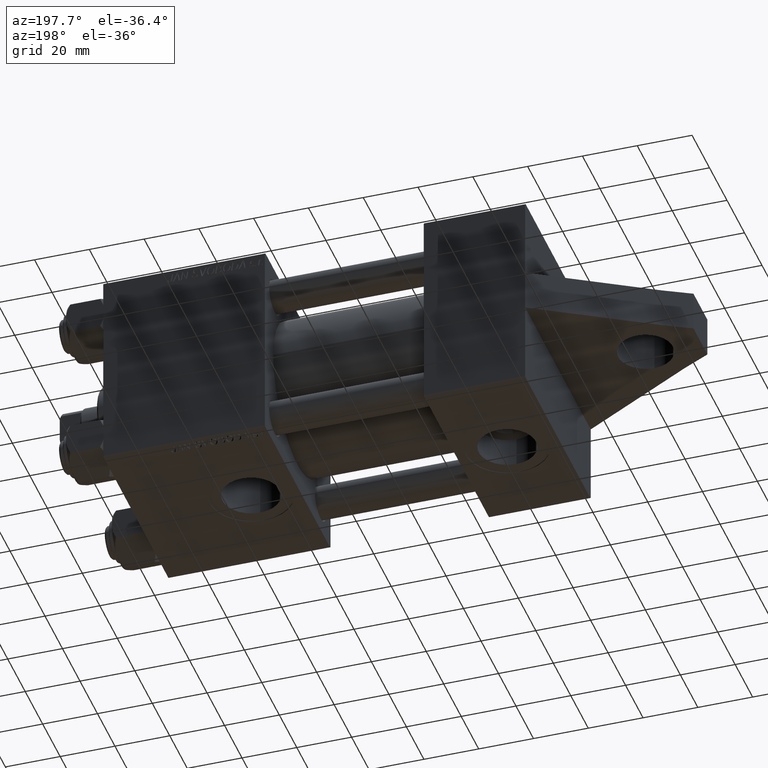
[diagram: clean part render]
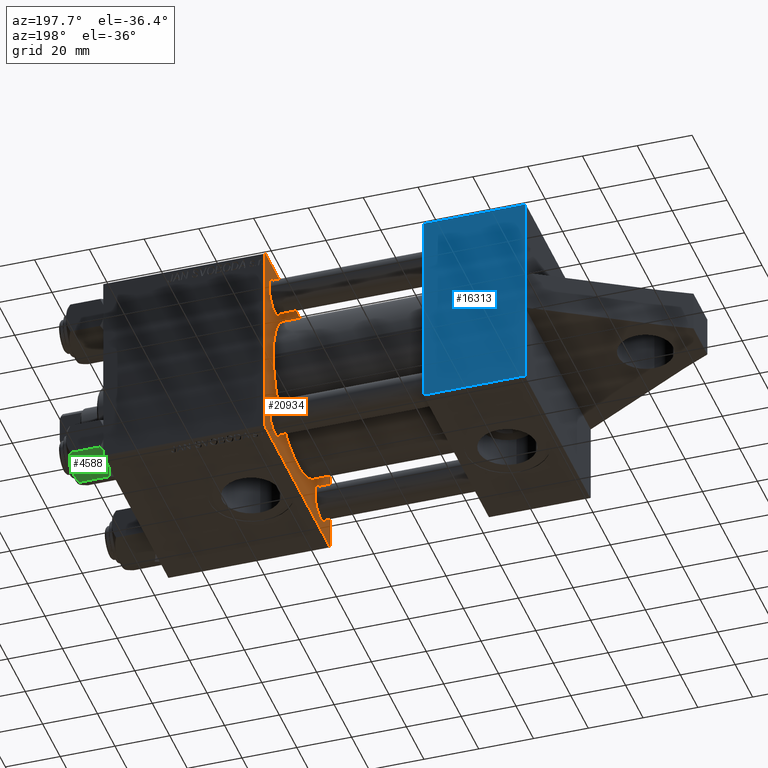
[diagram: same view with three faces highlighted in distinct colors, each labeled with its STEP entity id]
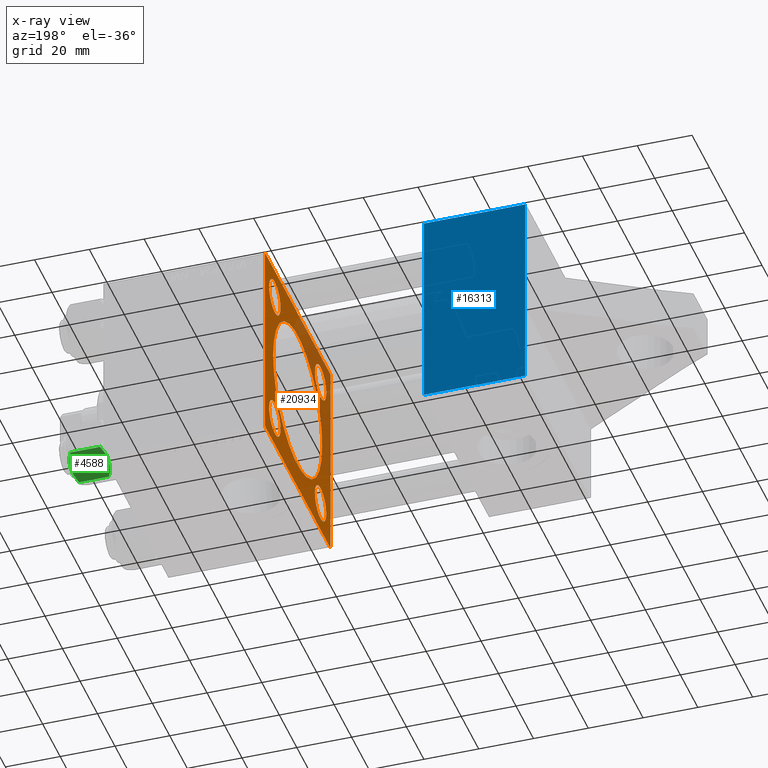
[diagram: x-ray of the same camera — body ghosted, the three highlighted faces saturated]
A machine part, auxiliary view with three faces highlighted in distinct colors.
The next image is the same camera in x-ray (body ghosted, the three faces saturated) — at least one of them is partly hidden behind the body in this view.
Their STEP definitions:

[orange] entity #20934 — the highlighted planar face has unit normal (-1, -0, 0).
#400 = EDGE_CURVE ( 'NONE', #4245, #25515, #40300, .T. ) ;
#948 = EDGE_LOOP ( 'NONE', ( #36280, #23678 ) ) ;
#1155 = ORIENTED_EDGE ( 'NONE', *, *, #33909, .T. ) ;
#1826 = DIRECTION ( 'NONE',  ( 0.000000000000000000, 0.000000000000000000, 1.000000000000000000 ) ) ;
#1888 = VERTEX_POINT ( 'NONE', #8541 ) ;
#1933 = EDGE_LOOP ( 'NONE', ( #24096, #18286 ) ) ;
#2420 = VERTEX_POINT ( 'NONE', #35903 ) ;
#2515 = VERTEX_POINT ( 'NONE', #11929 ) ;
#2652 = DIRECTION ( 'NONE',  ( 1.000000000000000000, 0.000000000000000000, 0.000000000000000000 ) ) ;
#2900 = CARTESIAN_POINT ( 'NONE',  ( 95.00000000000000000, -26.14999999999999147, 26.14999999999999503 ) ) ;
#3257 = AXIS2_PLACEMENT_3D ( 'NONE', #26500, #15330, #40005 ) ;
#3371 = CARTESIAN_POINT ( 'NONE',  ( 95.00000000000000000, 37.25000000000000000, 37.25000000000000000 ) ) ;
#4050 = DIRECTION ( 'NONE',  ( 1.000000000000000000, 0.000000000000000000, 0.000000000000000000 ) ) ;
#4245 = VERTEX_POINT ( 'NONE', #4726 ) ;
#4341 = CARTESIAN_POINT ( 'NONE',  ( 95.00000000000000000, 26.14999999999999858, 26.15000000000000213 ) ) ;
#4494 = ORIENTED_EDGE ( 'NONE', *, *, #36065, .T. ) ;
#4726 = CARTESIAN_POINT ( 'NONE',  ( 95.00000000000000000, -37.50000000000000000, 36.99999999999995026 ) ) ;
#4983 = DIRECTION ( 'NONE',  ( 0.000000000000000000, 0.000000000000000000, -1.000000000000000000 ) ) ;
#5441 = EDGE_CURVE ( 'NONE', #24966, #2515, #29822, .T. ) ;
#5603 = CARTESIAN_POINT ( 'NONE',  ( 95.00000000000000000, -37.50000000000000000, 37.49999999999997868 ) ) ;
#5610 = CARTESIAN_POINT ( 'NONE',  ( 95.00000000000000000, -37.24999999999997158, 37.24999999999997158 ) ) ;
#6054 = PLANE ( 'NONE',  #21685 ) ;
#6387 = VERTEX_POINT ( 'NONE', #40479 ) ;
#6396 = AXIS2_PLACEMENT_3D ( 'NONE', #27171, #41606, #9712 ) ;
#6397 = VERTEX_POINT ( 'NONE', #26061 ) ;
#6784 = AXIS2_PLACEMENT_3D ( 'NONE', #34537, #2652, #16842 ) ;
#7101 = CIRCLE ( 'NONE', #17495, 6.500000000000002665 ) ;
#7141 = VECTOR ( 'NONE', #4983, 1000.000000000000000 ) ;
#7307 = VERTEX_POINT ( 'NONE', #22054 ) ;
#7786 = VECTOR ( 'NONE', #38846, 1000.000000000000000 ) ;
#8084 = DIRECTION ( 'NONE',  ( 0.000000000000000000, 0.000000000000000000, 1.000000000000000000 ) ) ;
#8541 = CARTESIAN_POINT ( 'NONE',  ( 95.00000000000000000, -26.15000000000000213, -19.64999999999999503 ) ) ;
#9018 = CARTESIAN_POINT ( 'NONE',  ( 95.00000000000000000, -26.14999999999999147, 19.64999999999999147 ) ) ;
#9546 = FACE_BOUND ( 'NONE', #9589, .T. ) ;
#9589 = EDGE_LOOP ( 'NONE', ( #37667, #32321 ) ) ;
#9712 = DIRECTION ( 'NONE',  ( 0.000000000000000000, 0.000000000000000000, 1.000000000000000000 ) ) ;
#11016 = EDGE_LOOP ( 'NONE', ( #43641, #4494 ) ) ;
#11193 = ORIENTED_EDGE ( 'NONE', *, *, #37065, .F. ) ;
#11349 = VERTEX_POINT ( 'NONE', #9018 ) ;
#11568 = DIRECTION ( 'NONE',  ( 0.000000000000000000, 0.000000000000000000, 1.000000000000000000 ) ) ;
#11929 = CARTESIAN_POINT ( 'NONE',  ( 95.00000000000000000, -36.99999999999998579, -37.50000000000000000 ) ) ;
#12071 = DIRECTION ( 'NONE',  ( 0.000000000000000000, 0.000000000000000000, 1.000000000000000000 ) ) ;
#12391 = VECTOR ( 'NONE', #23072, 1000.000000000000114 ) ;
#13492 = AXIS2_PLACEMENT_3D ( 'NONE', #41611, #24601, #27848 ) ;
#13834 = ORIENTED_EDGE ( 'NONE', *, *, #400, .T. ) ;
#13874 = ORIENTED_EDGE ( 'NONE', *, *, #40014, .T. ) ;
#14062 = DIRECTION ( 'NONE',  ( 1.000000000000000000, 0.000000000000000000, -0.000000000000000000 ) ) ;
#14150 = CARTESIAN_POINT ( 'NONE',  ( 95.00000000000000000, -37.24999999999896261, -37.25000000000103029 ) ) ;
#14154 = CARTESIAN_POINT ( 'NONE',  ( 95.00000000000000000, 26.14999999999999858, -32.65000000000001279 ) ) ;
#14254 = LINE ( 'NONE', #14480, #33991 ) ;
#14381 = LINE ( 'NONE', #14150, #34240 ) ;
#14422 = EDGE_CURVE ( 'NONE', #2515, #2420, #14381, .T. ) ;
#14480 = CARTESIAN_POINT ( 'NONE',  ( 95.00000000000000000, 37.25000000000026290, -37.24999999999974420 ) ) ;
#14527 = DIRECTION ( 'NONE',  ( 0.000000000000000000, 0.000000000000000000, 1.000000000000000000 ) ) ;
#14643 = CIRCLE ( 'NONE', #29501, 6.500000000000008882 ) ;
#15254 = VECTOR ( 'NONE', #28747, 1000.000000000000114 ) ;
#15330 = DIRECTION ( 'NONE',  ( 1.000000000000000000, 0.000000000000000000, -0.000000000000000000 ) ) ;
#16183 = CARTESIAN_POINT ( 'NONE',  ( 95.00000000000000000, 26.14999999999999858, 32.65000000000001279 ) ) ;
#16228 = EDGE_CURVE ( 'NONE', #25371, #22889, #30588, .T. ) ;
#16842 = DIRECTION ( 'NONE',  ( 0.000000000000000000, 0.000000000000000000, -1.000000000000000000 ) ) ;
#16985 = EDGE_LOOP ( 'NONE', ( #1155, #40718 ) ) ;
#17241 = EDGE_CURVE ( 'NONE', #6397, #22692, #40929, .T. ) ;
#17422 = LINE ( 'NONE', #42805, #7786 ) ;
#17495 = AXIS2_PLACEMENT_3D ( 'NONE', #2900, #14062, #14527 ) ;
#17555 = ORIENTED_EDGE ( 'NONE', *, *, #35071, .T. ) ;
#18037 = EDGE_CURVE ( 'NONE', #27323, #31579, #35734, .T. ) ;
#18245 = DIRECTION ( 'NONE',  ( 0.000000000000000000, 0.000000000000000000, -1.000000000000000000 ) ) ;
#18286 = ORIENTED_EDGE ( 'NONE', *, *, #37685, .T. ) ;
#18306 = CIRCLE ( 'NONE', #42095, 6.500000000000008882 ) ;
#18335 = CARTESIAN_POINT ( 'NONE',  ( 95.00000000000000000, -2.602085213965210642E-15, 28.00000000000000000 ) ) ;
#19566 = FACE_BOUND ( 'NONE', #16985, .T. ) ;
#19821 = CARTESIAN_POINT ( 'NONE',  ( 95.00000000000000000, 37.00000000000000000, -37.50000000000000000 ) ) ;
#20117 = AXIS2_PLACEMENT_3D ( 'NONE', #4341, #32972, #11568 ) ;
#20934 = ADVANCED_FACE ( 'NONE', ( #19566, #41441, #9546, #27010, #45158, #23751 ), #6054, .T. ) ;
#21513 = CARTESIAN_POINT ( 'NONE',  ( 95.00000000000000000, -2.602085213965210642E-15, 0.000000000000000000 ) ) ;
#21685 = AXIS2_PLACEMENT_3D ( 'NONE', #41216, #34444, #23520 ) ;
#22054 = CARTESIAN_POINT ( 'NONE',  ( 95.00000000000000000, -26.14999999999999147, 32.64999999999999858 ) ) ;
#22105 = AXIS2_PLACEMENT_3D ( 'NONE', #21513, #4050, #18245 ) ;
#22286 = DIRECTION ( 'NONE',  ( 1.000000000000000000, 0.000000000000000000, -0.000000000000000000 ) ) ;
#22609 = CARTESIAN_POINT ( 'NONE',  ( 95.00000000000000000, 37.50000000000000000, -37.50000000000000000 ) ) ;
#22692 = VERTEX_POINT ( 'NONE', #14154 ) ;
#22822 = ORIENTED_EDGE ( 'NONE', *, *, #29137, .T. ) ;
#22889 = VERTEX_POINT ( 'NONE', #33230 ) ;
#22905 = LINE ( 'NONE', #43631, #7141 ) ;
#22961 = CARTESIAN_POINT ( 'NONE',  ( 95.00000000000000000, 37.00000000000000000, 37.49999999999999289 ) ) ;
#23072 = DIRECTION ( 'NONE',  ( -0.000000000000000000, 0.7071067811865474617, 0.7071067811865474617 ) ) ;
#23520 = DIRECTION ( 'NONE',  ( 0.000000000000000000, 0.000000000000000000, 1.000000000000000000 ) ) ;
#23545 = CARTESIAN_POINT ( 'NONE',  ( 95.00000000000000000, 37.50000000000000000, -36.99999999999999289 ) ) ;
#23678 = ORIENTED_EDGE ( 'NONE', *, *, #36235, .T. ) ;
#23751 = FACE_OUTER_BOUND ( 'NONE', #35590, .T. ) ;
#24096 = ORIENTED_EDGE ( 'NONE', *, *, #16228, .T. ) ;
#24098 = AXIS2_PLACEMENT_3D ( 'NONE', #45328, #33715, #1826 ) ;
#24601 = DIRECTION ( 'NONE',  ( 1.000000000000000000, 0.000000000000000000, -0.000000000000000000 ) ) ;
#24966 = VERTEX_POINT ( 'NONE', #19821 ) ;
#25358 = ORIENTED_EDGE ( 'NONE', *, *, #14422, .T. ) ;
#25371 = VERTEX_POINT ( 'NONE', #18335 ) ;
#25433 = DIRECTION ( 'NONE',  ( -0.000000000000000000, -0.7071067811865425767, -0.7071067811865525687 ) ) ;
#25515 = VERTEX_POINT ( 'NONE', #40911 ) ;
#25805 = CARTESIAN_POINT ( 'NONE',  ( 95.00000000000000000, -26.15000000000000213, -26.15000000000000213 ) ) ;
#26061 = CARTESIAN_POINT ( 'NONE',  ( 95.00000000000000000, 26.14999999999999858, -19.64999999999999503 ) ) ;
#26100 = DIRECTION ( 'NONE',  ( 0.000000000000000000, -9.251858538542972814E-17, -1.000000000000000000 ) ) ;
#26334 = DIRECTION ( 'NONE',  ( 0.000000000000000000, -1.000000000000000000, 0.000000000000000000 ) ) ;
#26500 = CARTESIAN_POINT ( 'NONE',  ( 95.00000000000000000, 26.14999999999999858, -26.15000000000000213 ) ) ;
#26556 = VECTOR ( 'NONE', #26100, 1000.000000000000000 ) ;
#26828 = EDGE_CURVE ( 'NONE', #22692, #6397, #31505, .T. ) ;
#26932 = EDGE_CURVE ( 'NONE', #11349, #7307, #35998, .T. ) ;
#27010 = FACE_BOUND ( 'NONE', #11016, .T. ) ;
#27171 = CARTESIAN_POINT ( 'NONE',  ( 95.00000000000000000, 26.14999999999999858, 26.15000000000000213 ) ) ;
#27323 = VERTEX_POINT ( 'NONE', #16183 ) ;
#27848 = DIRECTION ( 'NONE',  ( 0.000000000000000000, 0.000000000000000000, 1.000000000000000000 ) ) ;
#28276 = LINE ( 'NONE', #3371, #15254 ) ;
#28747 = DIRECTION ( 'NONE',  ( 0.000000000000000000, 0.7071067811865474617, -0.7071067811865474617 ) ) ;
#29137 = EDGE_CURVE ( 'NONE', #34728, #6387, #28276, .T. ) ;
#29294 = DIRECTION ( 'NONE',  ( 1.000000000000000000, 0.000000000000000000, -0.000000000000000000 ) ) ;
#29501 = AXIS2_PLACEMENT_3D ( 'NONE', #36239, #22286, #8084 ) ;
#29822 = LINE ( 'NONE', #22609, #32621 ) ;
#30588 = CIRCLE ( 'NONE', #6784, 28.00000000000000000 ) ;
#31291 = VERTEX_POINT ( 'NONE', #23545 ) ;
#31505 = CIRCLE ( 'NONE', #3257, 6.500000000000008882 ) ;
#31579 = VERTEX_POINT ( 'NONE', #38768 ) ;
#32284 = EDGE_CURVE ( 'NONE', #34728, #25515, #17422, .T. ) ;
#32321 = ORIENTED_EDGE ( 'NONE', *, *, #26828, .T. ) ;
#32621 = VECTOR ( 'NONE', #26334, 1000.000000000000000 ) ;
#32972 = DIRECTION ( 'NONE',  ( 1.000000000000000000, 0.000000000000000000, -0.000000000000000000 ) ) ;
#33230 = CARTESIAN_POINT ( 'NONE',  ( 95.00000000000000000, 8.269258236473776482E-16, -28.00000000000000000 ) ) ;
#33439 = ORIENTED_EDGE ( 'NONE', *, *, #32284, .F. ) ;
#33715 = DIRECTION ( 'NONE',  ( 1.000000000000000000, 0.000000000000000000, -0.000000000000000000 ) ) ;
#33909 = EDGE_CURVE ( 'NONE', #7307, #11349, #7101, .T. ) ;
#33991 = VECTOR ( 'NONE', #25433, 999.9999999999998863 ) ;
#34240 = VECTOR ( 'NONE', #38355, 1000.000000000000000 ) ;
#34444 = DIRECTION ( 'NONE',  ( -1.000000000000000000, -0.000000000000000000, 0.000000000000000000 ) ) ;
#34537 = CARTESIAN_POINT ( 'NONE',  ( 95.00000000000000000, -2.602085213965210642E-15, 0.000000000000000000 ) ) ;
#34728 = VERTEX_POINT ( 'NONE', #22961 ) ;
#35071 = EDGE_CURVE ( 'NONE', #6387, #31291, #22905, .T. ) ;
#35412 = CIRCLE ( 'NONE', #6396, 6.500000000000002665 ) ;
#35590 = EDGE_LOOP ( 'NONE', ( #45219, #25358, #11193, #13834, #33439, #22822, #17555, #13874 ) ) ;
#35734 = CIRCLE ( 'NONE', #20117, 6.500000000000002665 ) ;
#35903 = CARTESIAN_POINT ( 'NONE',  ( 95.00000000000000000, -37.50000000000000711, -37.00000000000000711 ) ) ;
#35998 = CIRCLE ( 'NONE', #24098, 6.500000000000002665 ) ;
#36065 = EDGE_CURVE ( 'NONE', #45711, #1888, #18306, .T. ) ;
#36235 = EDGE_CURVE ( 'NONE', #31579, #27323, #35412, .T. ) ;
#36239 = CARTESIAN_POINT ( 'NONE',  ( 95.00000000000000000, -26.15000000000000213, -26.15000000000000213 ) ) ;
#36280 = ORIENTED_EDGE ( 'NONE', *, *, #18037, .T. ) ;
#37065 = EDGE_CURVE ( 'NONE', #4245, #2420, #40295, .T. ) ;
#37667 = ORIENTED_EDGE ( 'NONE', *, *, #17241, .T. ) ;
#37685 = EDGE_CURVE ( 'NONE', #22889, #25371, #39207, .T. ) ;
#38355 = DIRECTION ( 'NONE',  ( 0.000000000000000000, -0.7071067811865671127, 0.7071067811865279218 ) ) ;
#38768 = CARTESIAN_POINT ( 'NONE',  ( 95.00000000000000000, 26.14999999999999858, 19.64999999999999858 ) ) ;
#38846 = DIRECTION ( 'NONE',  ( 0.000000000000000000, -1.000000000000000000, -1.850371707708594316E-16 ) ) ;
#39207 = CIRCLE ( 'NONE', #22105, 28.00000000000000000 ) ;
#39739 = EDGE_CURVE ( 'NONE', #1888, #45711, #14643, .T. ) ;
#40005 = DIRECTION ( 'NONE',  ( 0.000000000000000000, 0.000000000000000000, 1.000000000000000000 ) ) ;
#40014 = EDGE_CURVE ( 'NONE', #31291, #24966, #14254, .T. ) ;
#40295 = LINE ( 'NONE', #5603, #26556 ) ;
#40300 = LINE ( 'NONE', #5610, #12391 ) ;
#40479 = CARTESIAN_POINT ( 'NONE',  ( 95.00000000000000000, 37.50000000000000000, 36.99999999999999289 ) ) ;
#40718 = ORIENTED_EDGE ( 'NONE', *, *, #26932, .T. ) ;
#40911 = CARTESIAN_POINT ( 'NONE',  ( 95.00000000000000000, -36.99999999999997158, 37.49999999999997868 ) ) ;
#40929 = CIRCLE ( 'NONE', #13492, 6.500000000000008882 ) ;
#41216 = CARTESIAN_POINT ( 'NONE',  ( 95.00000000000000000, 0.000000000000000000, 0.000000000000000000 ) ) ;
#41441 = FACE_BOUND ( 'NONE', #948, .T. ) ;
#41487 = CARTESIAN_POINT ( 'NONE',  ( 95.00000000000000000, -26.15000000000000213, -32.65000000000001279 ) ) ;
#41606 = DIRECTION ( 'NONE',  ( 1.000000000000000000, 0.000000000000000000, -0.000000000000000000 ) ) ;
#41611 = CARTESIAN_POINT ( 'NONE',  ( 95.00000000000000000, 26.14999999999999858, -26.15000000000000213 ) ) ;
#42095 = AXIS2_PLACEMENT_3D ( 'NONE', #25805, #29294, #12071 ) ;
#42805 = CARTESIAN_POINT ( 'NONE',  ( 95.00000000000000000, 37.50000000000000000, 37.49999999999999289 ) ) ;
#43631 = CARTESIAN_POINT ( 'NONE',  ( 95.00000000000000000, 37.50000000000000000, 37.49999999999999289 ) ) ;
#43641 = ORIENTED_EDGE ( 'NONE', *, *, #39739, .T. ) ;
#45158 = FACE_BOUND ( 'NONE', #1933, .T. ) ;
#45219 = ORIENTED_EDGE ( 'NONE', *, *, #5441, .T. ) ;
#45328 = CARTESIAN_POINT ( 'NONE',  ( 95.00000000000000000, -26.14999999999999147, 26.14999999999999503 ) ) ;
#45711 = VERTEX_POINT ( 'NONE', #41487 ) ;

[blue] entity #16313 — the highlighted planar face has unit normal (-0, 1, 0).
#449 = EDGE_LOOP ( 'NONE', ( #18659, #24241, #20283, #23907, #12232, #1211 ) ) ;
#695 = VECTOR ( 'NONE', #17496, 1000.000000000000000 ) ;
#835 = CARTESIAN_POINT ( 'NONE',  ( 37.00000000000000000, 36.99999999999997868, -37.50000000000000000 ) ) ;
#1211 = ORIENTED_EDGE ( 'NONE', *, *, #30809, .T. ) ;
#1850 = DIRECTION ( 'NONE',  ( -1.000000000000000000, 0.000000000000000000, 0.000000000000000000 ) ) ;
#2537 = VERTEX_POINT ( 'NONE', #40326 ) ;
#3076 = LINE ( 'NONE', #31940, #695 ) ;
#3343 = CARTESIAN_POINT ( 'NONE',  ( 37.00000000000000000, 37.49999999999999289, -37.50000000000000000 ) ) ;
#4123 = VECTOR ( 'NONE', #23762, 1000.000000000000000 ) ;
#5311 = AXIS2_PLACEMENT_3D ( 'NONE', #3343, #10799, #27565 ) ;
#6243 = LINE ( 'NONE', #40725, #17586 ) ;
#8097 = CARTESIAN_POINT ( 'NONE',  ( 37.00000000000000000, -37.00000000000002132, -37.50000000000000711 ) ) ;
#9112 = CARTESIAN_POINT ( 'NONE',  ( 37.00000000000000000, 37.49999999999999289, -37.50000000000000000 ) ) ;
#9351 = CARTESIAN_POINT ( 'NONE',  ( 0.000000000000000000, 37.49999999999999289, -37.50000000000000000 ) ) ;
#10576 = VECTOR ( 'NONE', #20054, 1000.000000000000000 ) ;
#10636 = EDGE_CURVE ( 'NONE', #10914, #45733, #13065, .T. ) ;
#10799 = DIRECTION ( 'NONE',  ( 0.000000000000000000, 9.251858538542972814E-17, -1.000000000000000000 ) ) ;
#10914 = VERTEX_POINT ( 'NONE', #29106 ) ;
#12232 = ORIENTED_EDGE ( 'NONE', *, *, #39001, .F. ) ;
#13046 = LINE ( 'NONE', #9112, #4123 ) ;
#13065 = LINE ( 'NONE', #9351, #10576 ) ;
#14928 = EDGE_CURVE ( 'NONE', #10914, #32886, #36195, .T. ) ;
#15014 = DIRECTION ( 'NONE',  ( 1.000000000000000000, 0.000000000000000000, 0.000000000000000000 ) ) ;
#15522 = DIRECTION ( 'NONE',  ( 0.000000000000000000, 1.000000000000000000, 0.000000000000000000 ) ) ;
#16313 = ADVANCED_FACE ( 'NONE', ( #32203 ), #21036, .T. ) ;
#17496 = DIRECTION ( 'NONE',  ( 0.000000000000000000, -1.000000000000000000, -9.251858538542972814E-17 ) ) ;
#17586 = VECTOR ( 'NONE', #1850, 1000.000000000000000 ) ;
#18659 = ORIENTED_EDGE ( 'NONE', *, *, #10636, .F. ) ;
#20054 = DIRECTION ( 'NONE',  ( 0.000000000000000000, -1.000000000000000000, -9.251858538542972814E-17 ) ) ;
#20283 = ORIENTED_EDGE ( 'NONE', *, *, #34376, .T. ) ;
#20876 = VECTOR ( 'NONE', #15014, 1000.000000000000000 ) ;
#21036 = PLANE ( 'NONE',  #5311 ) ;
#21098 = VERTEX_POINT ( 'NONE', #8097 ) ;
#22370 = VERTEX_POINT ( 'NONE', #28051 ) ;
#23762 = DIRECTION ( 'NONE',  ( 0.000000000000000000, -1.000000000000000000, -9.251858538542972814E-17 ) ) ;
#23907 = ORIENTED_EDGE ( 'NONE', *, *, #40546, .T. ) ;
#24241 = ORIENTED_EDGE ( 'NONE', *, *, #14928, .T. ) ;
#27565 = DIRECTION ( 'NONE',  ( 0.000000000000000000, 1.000000000000000000, 9.251858538542972814E-17 ) ) ;
#28051 = CARTESIAN_POINT ( 'NONE',  ( 0.000000000000000000, -37.00000000000002132, -37.50000000000000711 ) ) ;
#29106 = CARTESIAN_POINT ( 'NONE',  ( 0.000000000000000000, 36.99999999999997868, -37.50000000000000000 ) ) ;
#30809 = EDGE_CURVE ( 'NONE', #2537, #45733, #40204, .T. ) ;
#31235 = CARTESIAN_POINT ( 'NONE',  ( 0.000000000000000000, 7.500000000000000000, -37.50000000000000711 ) ) ;
#31940 = CARTESIAN_POINT ( 'NONE',  ( 0.000000000000000000, 37.49999999999999289, -37.50000000000000000 ) ) ;
#32203 = FACE_OUTER_BOUND ( 'NONE', #449, .T. ) ;
#32886 = VERTEX_POINT ( 'NONE', #33872 ) ;
#33214 = CARTESIAN_POINT ( 'NONE',  ( 0.000000000000000000, -7.500000000000000000, -37.50000000000000711 ) ) ;
#33872 = CARTESIAN_POINT ( 'NONE',  ( 37.00000000000000000, 36.99999999999997868, -37.50000000000000000 ) ) ;
#34376 = EDGE_CURVE ( 'NONE', #32886, #21098, #13046, .T. ) ;
#36195 = LINE ( 'NONE', #835, #20876 ) ;
#39001 = EDGE_CURVE ( 'NONE', #2537, #22370, #3076, .T. ) ;
#40204 = LINE ( 'NONE', #33214, #41218 ) ;
#40326 = CARTESIAN_POINT ( 'NONE',  ( 0.000000000000000000, -7.500000000000000000, -37.50000000000000711 ) ) ;
#40546 = EDGE_CURVE ( 'NONE', #21098, #22370, #6243, .T. ) ;
#40725 = CARTESIAN_POINT ( 'NONE',  ( 0.000000000000000000, -37.00000000000002132, -37.50000000000000711 ) ) ;
#41218 = VECTOR ( 'NONE', #15522, 1000.000000000000000 ) ;
#45733 = VERTEX_POINT ( 'NONE', #31235 ) ;

[green] entity #4588 — the highlighted planar face has unit normal (-0, -0.5, 0.866).
#203 = CARTESIAN_POINT ( 'NONE',  ( 8.715000000000001634, -5.031607595987590997, 0.000000000000000000 ) ) ;
#1006 = CARTESIAN_POINT ( 'NONE',  ( 8.715000000000001634, -5.031607595987590997, -14.00000000000000000 ) ) ;
#1675 = CARTESIAN_POINT ( 'NONE',  ( 8.715000000000001634, -5.031607595987590997, 0.000000000000000000 ) ) ;
#3972 = CARTESIAN_POINT ( 'NONE',  ( 6.265018354709775750, -9.275100283241444643, -12.89823354668504507 ) ) ;
#4208 = PLANE ( 'NONE',  #35577 ) ;
#4588 = ADVANCED_FACE ( 'NONE', ( #36099 ), #4208, .F. ) ;
#5509 = CARTESIAN_POINT ( 'NONE',  ( 5.810000000000000497, -10.06321519197517667, -14.00000000000000000 ) ) ;
#5934 = CARTESIAN_POINT ( 'NONE',  ( 11.62000000000000099, -1.795242522838921761E-15, -12.44321519197518455 ) ) ;
#6708 = CARTESIAN_POINT ( 'NONE',  ( 11.62000000000000099, -1.607967606633101042E-15, -1.556784808024815669 ) ) ;
#7056 = CARTESIAN_POINT ( 'NONE',  ( 11.62000000000000099, -1.795242522838921761E-15, -12.44321519197518455 ) ) ;
#7430 = EDGE_LOOP ( 'NONE', ( #39012, #27068, #43338, #14147, #13973, #42545 ) ) ;
#8432 = EDGE_CURVE ( 'NONE', #11494, #15379, #27093, .T. ) ;
#9228 = LINE ( 'NONE', #5509, #18909 ) ;
#9671 = VERTEX_POINT ( 'NONE', #31056 ) ;
#11494 = VERTEX_POINT ( 'NONE', #1006 ) ;
#13283 = CARTESIAN_POINT ( 'NONE',  ( 5.810000000000000497, -10.06321519197517667, -1.556784808024813671 ) ) ;
#13816 = CARTESIAN_POINT ( 'NONE',  ( 11.16445427487471775, -0.7890283410877989567, -12.89876091710046424 ) ) ;
#13973 = ORIENTED_EDGE ( 'NONE', *, *, #30721, .F. ) ;
#14147 = ORIENTED_EDGE ( 'NONE', *, *, #40168, .F. ) ;
#14901 = CARTESIAN_POINT ( 'NONE',  ( 8.715000000000001634, -5.031607595987590997, -14.00000000000000000 ) ) ;
#15375 = DIRECTION ( 'NONE',  ( -0.8660254037844385966, 0.5000000000000002220, 0.000000000000000000 ) ) ;
#15379 = VERTEX_POINT ( 'NONE', #35570 ) ;
#15465 = EDGE_CURVE ( 'NONE', #43573, #9671, #45608, .T. ) ;
#18909 = VECTOR ( 'NONE', #23423, 1000.000000000000000 ) ;
#21141 = CARTESIAN_POINT ( 'NONE',  ( 9.220295946303432189, -4.156409344131454020, 1.753358200816401307E-15 ) ) ;
#23089 = CARTESIAN_POINT ( 'NONE',  ( 7.700834831386345058, -6.788193195293096949, -0.1903979688073415555 ) ) ;
#23423 = DIRECTION ( 'NONE',  ( -0.000000000000000000, -0.000000000000000000, 1.000000000000000000 ) ) ;
#24302 = CARTESIAN_POINT ( 'NONE',  ( 8.969430103550385169, -4.590921729663315354, -14.00000000000000533 ) ) ;
#24928 = CARTESIAN_POINT ( 'NONE',  ( 6.733375043383497349, -8.463882702393844326, -13.28854452935655139 ) ) ;
#25617 = CARTESIAN_POINT ( 'NONE',  ( 5.810000000000000497, -10.06321519197517667, -12.44321519197518633 ) ) ;
#25703 = VERTEX_POINT ( 'NONE', #7056 ) ;
#25891 = CARTESIAN_POINT ( 'NONE',  ( 6.265545725125283738, -9.274186850887380373, -1.101239082899531319 ) ) ;
#26125 = CARTESIAN_POINT ( 'NONE',  ( 8.202333004087901003, -5.919572880271055659, -0.03994118060690762112 ) ) ;
#26860 = CARTESIAN_POINT ( 'NONE',  ( 11.62000000000000099, -1.813166800014576593E-15, -14.00000000000000000 ) ) ;
#27068 = ORIENTED_EDGE ( 'NONE', *, *, #31129, .T. ) ;
#27093 = B_SPLINE_CURVE_WITH_KNOTS ( 'NONE', 3,
 ( #14901, #35863, #29110, #24928, #3972, #25617 ),
 .UNSPECIFIED., .F., .F.,
 ( 4, 2, 4 ),
 ( 0.006022845781655588975, 0.009013049135303635023, 0.01200325248895167674 ),
 .UNSPECIFIED. ) ;
#27113 = CARTESIAN_POINT ( 'NONE',  ( 8.715000000000001634, -5.031607595987590997, -14.00000000000000000 ) ) ;
#27568 = CARTESIAN_POINT ( 'NONE',  ( 9.974696630283194310, -2.849749030213795997, -13.69973261901326289 ) ) ;
#28014 = CARTESIAN_POINT ( 'NONE',  ( 9.729165168613654657, -3.275021996682085490, -13.80960203119266083 ) ) ;
#29110 = CARTESIAN_POINT ( 'NONE',  ( 7.713000053756304375, -6.767122412062953174, -13.84547602999601601 ) ) ;
#29580 = DIRECTION ( 'NONE',  ( -0.5000000000000001110, -0.8660254037844384856, 0.000000000000000000 ) ) ;
#30721 = EDGE_CURVE ( 'NONE', #15379, #40252, #9228, .T. ) ;
#31056 = CARTESIAN_POINT ( 'NONE',  ( 11.62000000000000099, -1.607967606633101042E-15, -1.556784808024815669 ) ) ;
#31129 = EDGE_CURVE ( 'NONE', #25703, #9671, #41066, .T. ) ;
#32072 = B_SPLINE_CURVE_WITH_KNOTS ( 'NONE', 3,
 ( #43815, #25891, #33563, #33095, #23089, #26125, #36816, #1675 ),
 .UNSPECIFIED., .F., .F.,
 ( 4, 2, 2, 4 ),
 ( 2.544312114902182352E-07, 0.003011550106433538189, 0.004517197944044561847, 0.006022845781655586372 ),
 .UNSPECIFIED. ) ;
#33068 = CARTESIAN_POINT ( 'NONE',  ( 11.62000000000000099, -1.813166800014576593E-15, -14.00000000000000000 ) ) ;
#33095 = CARTESIAN_POINT ( 'NONE',  ( 7.455303369716810735, -7.213466161761385109, -0.3002673809867383303 ) ) ;
#33563 = CARTESIAN_POINT ( 'NONE',  ( 6.731401448974986934, -8.467301068182914392, -0.7141438259524658383 ) ) ;
#33957 = CARTESIAN_POINT ( 'NONE',  ( 8.715000000000001634, -5.031607595987590997, 0.000000000000000000 ) ) ;
#34616 = VECTOR ( 'NONE', #34743, 1000.000000000000000 ) ;
#34743 = DIRECTION ( 'NONE',  ( -0.000000000000000000, -0.000000000000000000, 1.000000000000000000 ) ) ;
#34998 = CARTESIAN_POINT ( 'NONE',  ( 9.227666995912104042, -4.143642311704127223, -13.96005881939309212 ) ) ;
#35337 = CARTESIAN_POINT ( 'NONE',  ( 10.69662495661650503, -1.599332489581334560, -0.7114554706434500497 ) ) ;
#35570 = CARTESIAN_POINT ( 'NONE',  ( 5.810000000000000497, -10.06321519197517667, -12.44321519197518633 ) ) ;
#35577 = AXIS2_PLACEMENT_3D ( 'NONE', #33068, #15375, #29580 ) ;
#35632 = B_SPLINE_CURVE_WITH_KNOTS ( 'NONE', 3,
 ( #5934, #13816, #45259, #27568, #28014, #34998, #24302, #27113 ),
 .UNSPECIFIED., .F., .F.,
 ( 4, 2, 2, 4 ),
 ( 2.544312114905217906E-07, 0.003011550106433539490, 0.004517197944044564449, 0.006022845781655588975 ),
 .UNSPECIFIED. ) ;
#35863 = CARTESIAN_POINT ( 'NONE',  ( 8.209704053696569304, -5.906805847843729751, -14.00000000000000711 ) ) ;
#36099 = FACE_OUTER_BOUND ( 'NONE', #7430, .T. ) ;
#36816 = CARTESIAN_POINT ( 'NONE',  ( 8.460569896449618099, -5.472293462311865753, 1.694065894508600678E-15 ) ) ;
#38598 = CARTESIAN_POINT ( 'NONE',  ( 11.16498164529022574, -0.7881149087337310233, -1.101766453314954264 ) ) ;
#39012 = ORIENTED_EDGE ( 'NONE', *, *, #45411, .F. ) ;
#40168 = EDGE_CURVE ( 'NONE', #40252, #43573, #32072, .T. ) ;
#40252 = VERTEX_POINT ( 'NONE', #13283 ) ;
#41066 = LINE ( 'NONE', #26860, #34616 ) ;
#42094 = CARTESIAN_POINT ( 'NONE',  ( 9.716999946243698005, -3.296092779912227932, -0.1545239700039841013 ) ) ;
#42545 = ORIENTED_EDGE ( 'NONE', *, *, #8432, .F. ) ;
#43338 = ORIENTED_EDGE ( 'NONE', *, *, #15465, .F. ) ;
#43573 = VERTEX_POINT ( 'NONE', #33957 ) ;
#43815 = CARTESIAN_POINT ( 'NONE',  ( 5.810000000000000497, -10.06321519197517667, -1.556784808024813671 ) ) ;
#45259 = CARTESIAN_POINT ( 'NONE',  ( 10.69859855102500745, -1.595914123792264050, -13.28585617404753094 ) ) ;
#45411 = EDGE_CURVE ( 'NONE', #25703, #11494, #35632, .T. ) ;
#45608 = B_SPLINE_CURVE_WITH_KNOTS ( 'NONE', 3,
 ( #203, #21141, #42094, #35337, #38598, #6708 ),
 .UNSPECIFIED., .F., .F.,
 ( 4, 2, 4 ),
 ( 0.006022845781655586372, 0.009013049135303633289, 0.01200325248895168020 ),
 .UNSPECIFIED. ) ;